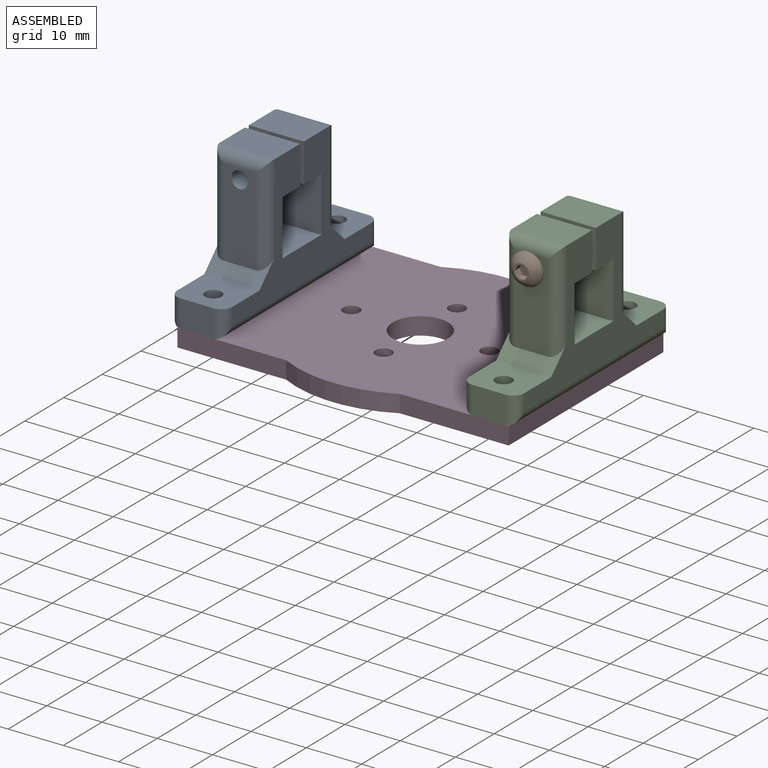
[diagram: assembled view]
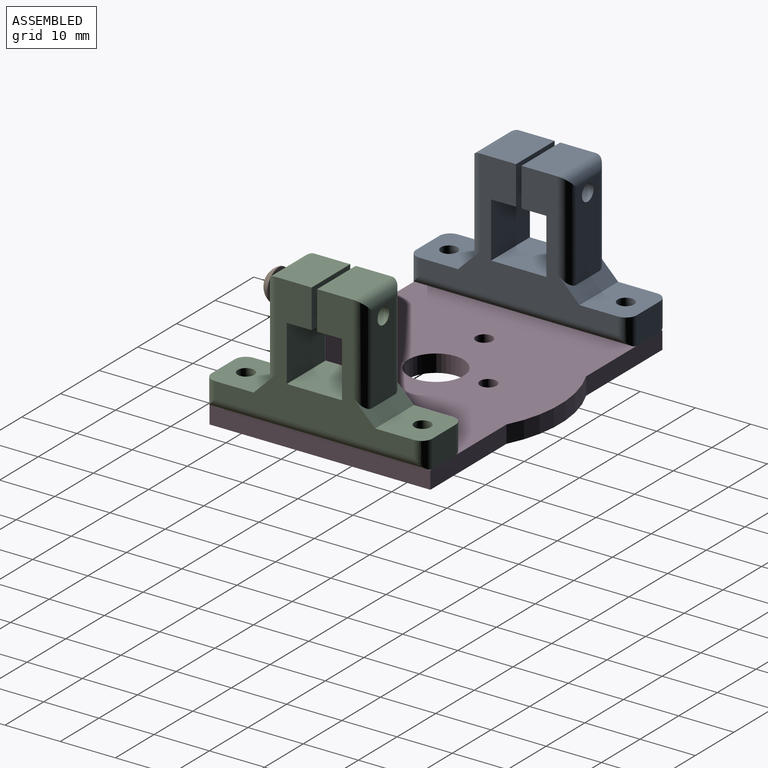
[diagram: assembled view, second angle]
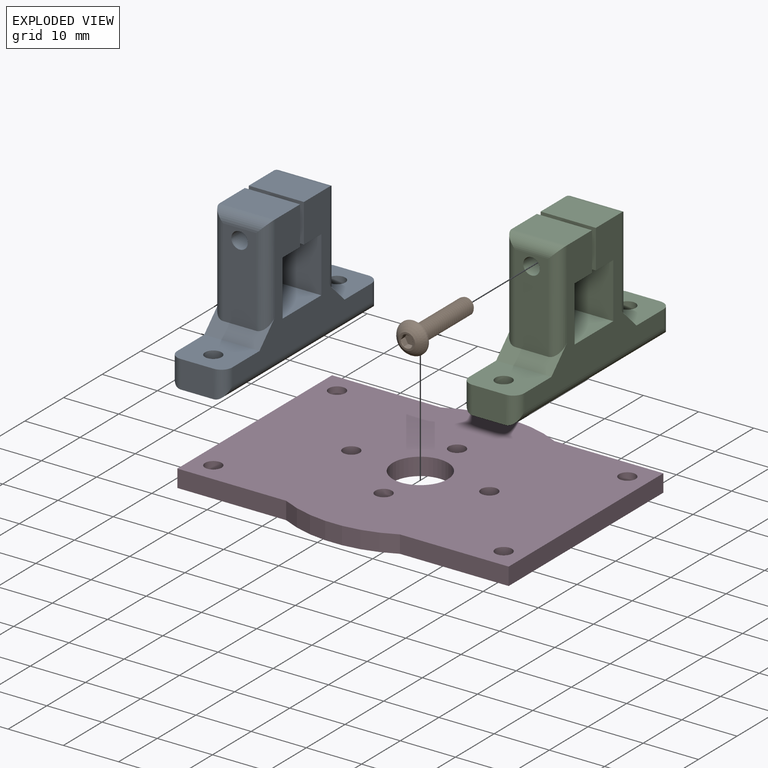
[diagram: exploded view]
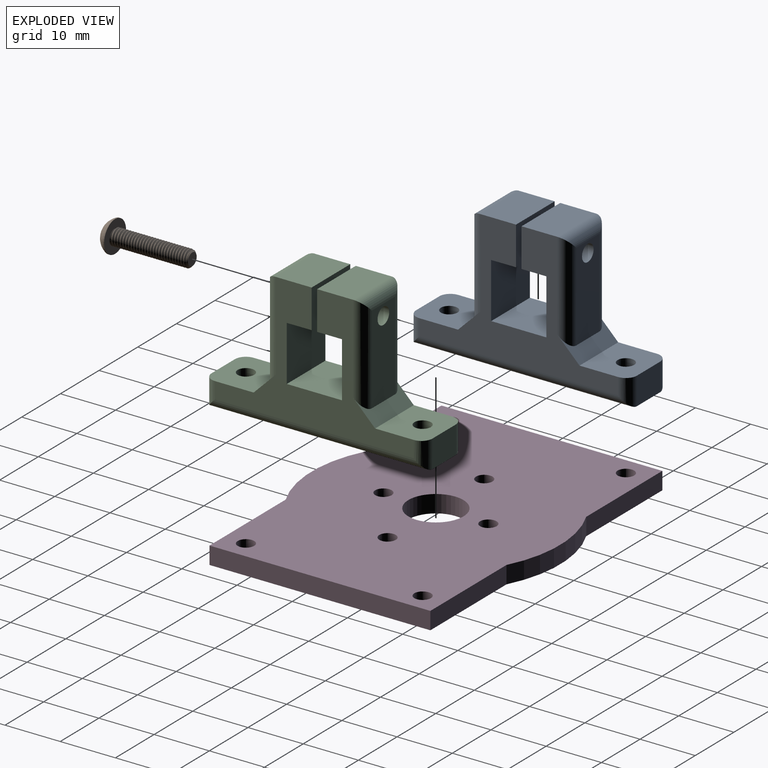
[diagram: exploded view, second angle]
ASSEMBLY  parts=4 mates=3
PART A: 36 faces, bbox 40x10x25 mm
  f0: plane 40x6mm, normal (0,0,-1), area 225.9mm2, adj f4,f5,f16,f17,f31,f34
  f1: plane 10x6.99mm, normal (1,0,0), area 62.8mm2, adj f13,f14,f15,f19,f21
  f2: plane 16x6mm, normal (-1,0,0), area 88.9mm2, adj f19,f22,f27,f28,f29
  f3: plane 10x9mm, normal (0,0,1), area 81.2mm2, adj f4,f14,f15,f17,f22,f30,f33
  f4: plane 6x5mm, normal (-1,0,0), area 30mm2, adj f0,f3,f30,f33
  f5: plane 6x5mm, normal (1,0,0), area 30mm2, adj f0,f6,f32,f35
  f6: plane 10x9mm, normal (0,0,1), area 81.2mm2, adj f5,f14,f15,f16,f23,f32,f35
  f7: plane 16x6mm, normal (1,0,0), area 88.9mm2, adj f18,f23,f24,f25,f26
  f8: plane 10x6.99mm, normal (-1,0,0), area 62.8mm2, adj f9,f14,f15,f18,f20
  f9: plane 10x4.5mm, normal (0,0,-1), area 45mm2, adj f8,f10,f14,f15
  f10: plane 10x10mm, normal (-1,0,0), area 100mm2, adj f9,f11,f14,f15
  f11: plane 10x10mm, normal (0,0,1), area 100mm2, adj f10,f12,f14,f15
  f12: plane 10x10mm, normal (1,0,0), area 100mm2, adj f11,f13,f14,f15
  f13: plane 10x4.5mm, normal (0,0,-1), area 45mm2, adj f1,f12,f14,f15
  f14: plane 36x23mm, normal (0,-1,0), area 297mm2, adj f1,f3,f6,f8,f9,f10,f11,f12
  f15: plane 36x23mm, normal (0,1,0), area 297mm2, adj f1,f3,f6,f8,f9,f10,f11,f12
  f16: cylinder r=1.5mm len=5mm, axis (0,0,-1), area 47.1mm2, adj f0,f6
  f17: cylinder r=1.5mm len=5mm, axis (0,0,-1), area 47.1mm2, adj f0,f3
  f18: cylinder r=1.5mm len=8.5mm, axis (-1,0,0), area 80.1mm2, adj f7,f8
  f19: cylinder r=1.5mm len=8.5mm, axis (-1,0,0), area 80.1mm2, adj f1,f2
  f20: plane 10x6.5mm, normal (0,0,1), area 65mm2, adj f8,f14,f15,f25
  f21: plane 10x6.5mm, normal (0,0,1), area 65mm2, adj f1,f14,f15,f28
  f22: plane 10x4mm, normal (-0.71,0,0.71), area 30.7mm2, adj f2,f3,f14,f15,f27,f29
  f23: plane 10x4mm, normal (0.71,0,0.71), area 30.7mm2, adj f6,f7,f14,f15,f24,f26
  f24: cylinder r=2mm len=18mm, axis (0,0,1), area 52mm2, adj f7,f15,f23,f25
  f25: cylinder r=2mm len=10mm, axis (0,1,0), area 26.8mm2, adj f7,f20,f24,f26
  f26: cylinder r=2mm len=18mm, axis (0,0,-1), area 52mm2, adj f7,f14,f23,f25
  f27: cylinder r=2mm len=18mm, axis (0,0,-1), area 52mm2, adj f2,f15,f22,f28
  f28: cylinder r=2mm len=10mm, axis (0,-1,0), area 26.8mm2, adj f2,f21,f27,f29
  f29: cylinder r=2mm len=18mm, axis (0,0,1), area 52mm2, adj f2,f14,f22,f28
  f30: cylinder r=2mm len=5mm, axis (0,0,-1), area 13.4mm2, adj f3,f4,f15,f31
  f31: cylinder r=2mm len=40mm, axis (1,0,0), area 121.1mm2, adj f0,f15,f30,f32
  f32: cylinder r=2mm len=5mm, axis (0,0,1), area 13.4mm2, adj f5,f6,f15,f31
  f33: cylinder r=2mm len=5mm, axis (0,0,1), area 13.4mm2, adj f3,f4,f14,f34
  f34: cylinder r=2mm len=40mm, axis (-1,0,0), area 121.1mm2, adj f0,f14,f33,f35
  f35: cylinder r=2mm len=5mm, axis (0,0,-1), area 13.4mm2, adj f5,f6,f14,f34
PART B: 24 faces, bbox 6.1x6.1x16.3 mm
  f0: cone r=1.12mm half-angle=45deg, axis (0,0,1), area 1.9mm2, adj f1,f2,f4,f6
  f1: cone r=1.12mm half-angle=45deg, axis (0,0,1), area 0.5mm2, adj f0,f3,f4,f5
  f2: plane 2.25x2.25mm, normal (0,0,-1), area 4mm2, adj f0
  f3: cylinder r=1.5mm len=13.63mm, axis (0,0,-1), area -38.5mm2, adj f1,f4,f5,f9
  f4: bspline ~14.44x3.46mm, area 86.3mm2, adj f0,f1,f3,f6,f9
  f5: bspline ~14.27x3.46mm, area 87.3mm2, adj f1,f3,f6,f9
  f6: cylinder r=1.18mm len=13.95mm, axis (0,0,1), area 10.9mm2, adj f0,f4,f5,f9
  f7: sphere r=3.17mm, area 28mm2, adj f8,f10
  f8: plane 3x3mm, normal (0,0,1), area 2.9mm2, adj f7,f11,f12,f13,f14,f15,f16
  f9: plane 5.9x5.9mm, normal (0,0,-1), area 19.9mm2, adj f3,f4,f5,f6,f10
  f10: cylinder r=2.85mm len=5.7mm, axis (0,0,1), area 4.4mm2, adj f7,f9
  f11: cone r=1.15mm half-angle=45deg, axis (0,0,1), area 0mm2, adj f8,f18
  f12: cone r=1.15mm half-angle=45deg, axis (0,0,1), area 0mm2, adj f8,f19
  f13: cone r=1.15mm half-angle=45deg, axis (0,0,1), area 0mm2, adj f8,f20
  f14: cone r=1.15mm half-angle=45deg, axis (0,0,1), area 0mm2, adj f8,f21
  f15: cone r=1.15mm half-angle=45deg, axis (0,0,1), area 0mm2, adj f8,f22
  f16: cone r=1.15mm half-angle=45deg, axis (0,0,1), area 0mm2, adj f8,f23
  f17: plane 2.31x2mm, normal (0,0,1), area 3.5mm2, adj f18,f19,f20,f21,f22,f23
  f18: plane 1.59x1.59mm, normal (-1,0,0), area 1.2mm2, adj f11,f17,f19,f23
  f19: plane 1.59x1.44mm, normal (-0.5,-0.87,0), area 1.2mm2, adj f12,f17,f18,f20
  f20: plane 1.59x1.44mm, normal (0.5,-0.87,0), area 1.2mm2, adj f13,f17,f19,f21
  f21: plane 1.59x1.59mm, normal (1,0,0), area 1.2mm2, adj f14,f17,f20,f22
  f22: plane 1.59x1.44mm, normal (0.5,0.87,0), area 1.2mm2, adj f15,f17,f21,f23
  f23: plane 1.59x1.44mm, normal (-0.5,0.87,0), area 1.2mm2, adj f16,f17,f18,f22
PART C: same geometry as A
PART D: 19 faces, bbox 60x45x3.2 mm
  f0: cylinder r=22.5mm len=20.62mm, axis (0,0,-1), area 68mm2, adj f1,f15,f17,f18
  f1: plane 19.69x3.18mm, normal (0,-1,0), area 62.5mm2, adj f0,f2,f17,f18
  f2: plane 40x3.18mm, normal (1,0,0), area 127mm2, adj f1,f3,f17,f18
  f3: plane 19.69x3.18mm, normal (0,1,0), area 62.5mm2, adj f2,f4,f17,f18
  f4: cylinder r=22.5mm len=20.62mm, axis (0,0,-1), area 68mm2, adj f3,f5,f17,f18
  f5: plane 19.69x3.18mm, normal (0,1,0), area 62.5mm2, adj f4,f6,f17,f18
  f6: plane 40x3.18mm, normal (-1,0,0), area 127mm2, adj f5,f15,f17,f18
  f7: cylinder r=1.5mm len=3.18mm, axis (0,0,-1), area 29.9mm2, adj f17,f18
  f8: cylinder r=5mm len=10mm, axis (0,0,-1), area 99.7mm2, adj f17,f18
  f9: cylinder r=1.5mm len=3.18mm, axis (0,0,-1), area 29.9mm2, adj f17,f18
  f10: cylinder r=1.5mm len=3.18mm, axis (0,0,-1), area 29.9mm2, adj f17,f18
  f11: cylinder r=1.5mm len=3.18mm, axis (0,0,-1), area 29.9mm2, adj f17,f18
  f12: cylinder r=1.5mm len=3.18mm, axis (0,0,-1), area 29.9mm2, adj f17,f18
  f13: cylinder r=1.5mm len=3.18mm, axis (0,0,-1), area 29.9mm2, adj f17,f18
  f14: cylinder r=1.5mm len=3.18mm, axis (0,0,-1), area 29.9mm2, adj f17,f18
  f15: plane 19.69x3.18mm, normal (0,-1,0), area 62.5mm2, adj f0,f6,f17,f18
  f16: cylinder r=1.5mm len=3.18mm, axis (0,0,-1), area 29.9mm2, adj f17,f18
  f17: plane 60x45mm, normal (0,0,1), area 2334.4mm2, adj f0,f1,f2,f3,f4,f5,f6,f7
  f18: plane 60x45mm, normal (0,0,-1), area 2334.4mm2, adj f0,f1,f2,f3,f4,f5,f6,f7
PLACE A rot(axis=(0,0,-1),90deg) t=(-46.59,-4.58,-18.02)mm
PLACE B rot(axis=(0.58,0.58,-0.58),120deg) t=(1.28,-16.23,-8.52)mm
PLACE C rot(axis=(0,0,1),90deg) t=(-3.72,-4.58,-18.02)mm
PLACE D t=(-25.16,-4.58,-32.7)mm
MATE fastened B.f0 <-> C.f18  axis (0,1,0) through (1.28,-0.58,-8.52)mm
MATE fastened A.f17 <-> D.f12  axis (0,0,-1) through (-51.45,11.42,-29.52)mm
MATE fastened C.f16 <-> D.f13  axis (0,0,-1) through (1.13,11.42,-29.52)mm
